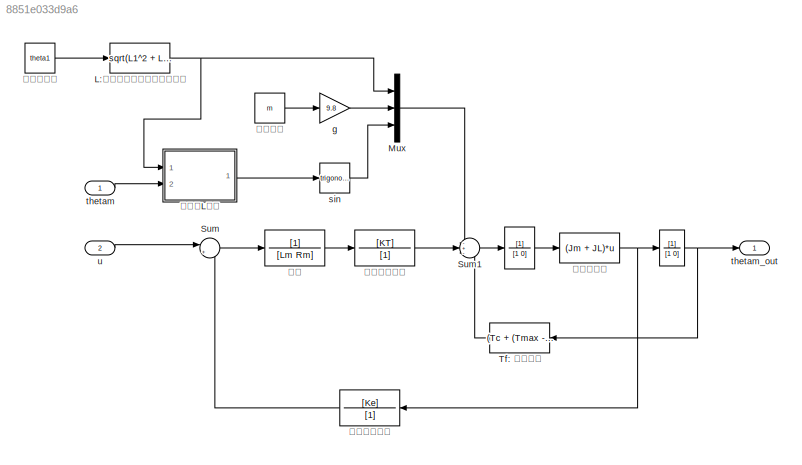
MODEL slx_8851e033d9a6
KIND model
CONFIG AbsTol = auto
CONFIG FixedStep = auto
CONFIG MaxStep = auto
CONFIG MinStep = auto
CONFIG RelTol = 1e-3
CONFIG SampleTimeConstraint = Unconstrained
CONFIG Solver = VariableStepAuto
CONFIG SolverMode = Auto
CONFIG SolverName = VariableStepAuto
CONFIG StartTime = 0.0
CONFIG StopTime = 10.0
BLOCK [TransferFcn]  
  Denominator = [1 0]
BLOCK [Fcn] L:等效质心与髋关节中心距离
  Expr = sqrt(L1^2 + L2^2/4 - L1*L2*cos（u）)
BLOCK [Mux] Mux
  DisplayOption = bar
  Inputs = 3
  Ports = [3, 1]
BLOCK [Sum] Sum
  IconShape = round
  InputSameDT = off
  Inputs = |++
  OutDataTypeStr = Inherit: Inherit via internal rule
  Ports = [2, 1]
  SaturateOnIntegerOverflow = off
BLOCK [Sum] Sum1
  IconShape = round
  InputSameDT = off
  Inputs = -+-
  OutDataTypeStr = Inherit: Inherit via internal rule
  Ports = [3, 1]
  SaturateOnIntegerOverflow = off
BLOCK [Fcn] Tf: 摩擦力矩
  Expr = (Tc + (Tmax - Tc)*exp(-v*abs(u)))*sign(u) + kv*u
BLOCK [Gain] g
  Gain = 9.8
  OutDataTypeStr = Inherit: Inherit via internal rule
  ParamDataTypeStr = Inherit: Inherit via internal rule
  SaturateOnIntegerOverflow = off
BLOCK [Trigonometry] sin
  Ports = [1, 1]
BLOCK [Inport] thetam
  IconDisplay = Port number
BLOCK [Outport] thetam_out
  IconDisplay = Port number
BLOCK [Inport] u
  IconDisplay = Port number
  Port = 2
BLOCK [TransferFcn] 反电动势系数
  Denominator = [1]
  Numerator = [Ke]
BLOCK [Constant] 小腿质量
  Value = m
BLOCK [Fcn] 总转动力矩
  Expr = (Jm + JL)*u
BLOCK [TransferFcn] 电枢
  Denominator = [Lm Rm]
BLOCK [TransferFcn] 电磁转矩系数
  Denominator = [1]
  Numerator = [KT]
BLOCK [Constant] 膝关节夹角
  Value = theta1
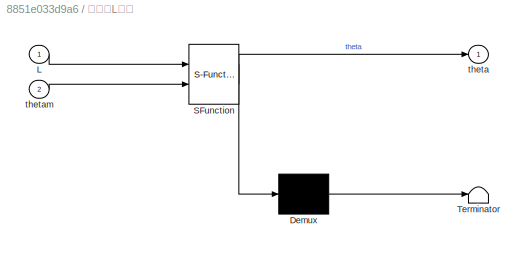
BLOCK [SubSystem] 重力与L夹角
  ErrorFcn = Stateflow.Translate.translate
  PermitHierarchicalResolution = ExplicitOnly
  Ports = [2, 1]
  RequestExecContextInheritance = off
  SFBlockType = MATLAB Function
  TreatAsAtomicUnit = on
  Variant = off
BLOCK [Demux] 重力与L夹角/ Demux 
  Outputs = 1
  Ports = [1, 1]
BLOCK [S-Function] 重力与L夹角/ SFunction 
  EnableBusSupport = off
  FunctionName = sf_sfun
  PortCounts = [2 2]
  Ports = [2, 2]
  SFunctionDeploymentMode = off
  Tag = Stateflow S-Function Motor 2
BLOCK [Terminator] 重力与L夹角/ Terminator 
BLOCK [Inport] 重力与L夹角/L
  IconDisplay = Port number
BLOCK [Outport] 重力与L夹角/theta
  IconDisplay = Port number
BLOCK [Inport] 重力与L夹角/thetam
  IconDisplay = Port number
  Port = 2
NET  :1 -> Tf: 摩擦力矩:1, thetam_out:1, 总转动力矩:1
NET L:等效质心与髋关节中心距离:1 -> Mux:1, 重力与L夹角:1
LINE Mux:1 -> Sum1:1
LINE Sum1:1 ->  :1
LINE Sum:1 -> 电枢:1
LINE Tf: 摩擦力矩:1 -> Sum1:3
LINE g:1 -> Mux:2
LINE sin:1 -> Mux:3
LINE thetam:1 -> 重力与L夹角:2
LINE u:1 -> Sum:1
LINE 反电动势系数:1 -> Sum:2
LINE 小腿质量:1 -> g:1
NET 总转动力矩:1 ->  :1, 反电动势系数:1
LINE 电枢:1 -> 电磁转矩系数:1
LINE 电磁转矩系数:1 -> Sum1:2
LINE 膝关节夹角:1 -> L:等效质心与髋关节中心距离:1
LINE 重力与L夹角:1 -> sin:1
note: NET lines group one-source signal fan-out (src -> all destinations, sorted); 1:1 wires keep LINE
CHART 重力与L夹角 states=1 transitions=1
  STATE_LABEL 'eML_blk_kernel()'
  STATE_LABEL 'SCRIPT:\nfunction theta = fcn(L, thetam)\n\ntheta = pi - thetam - acos((L^2 + L1^2 - L2^2)/(2*L1*L));'
